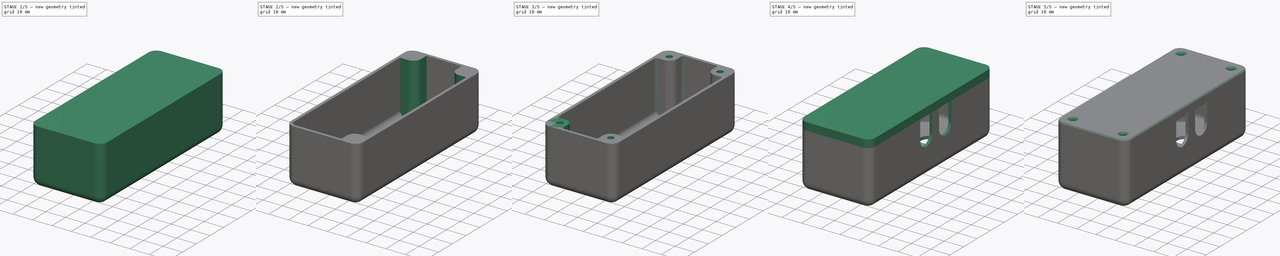
[diagram: build sequence overview — one tinted view per stage of 5, left to right]
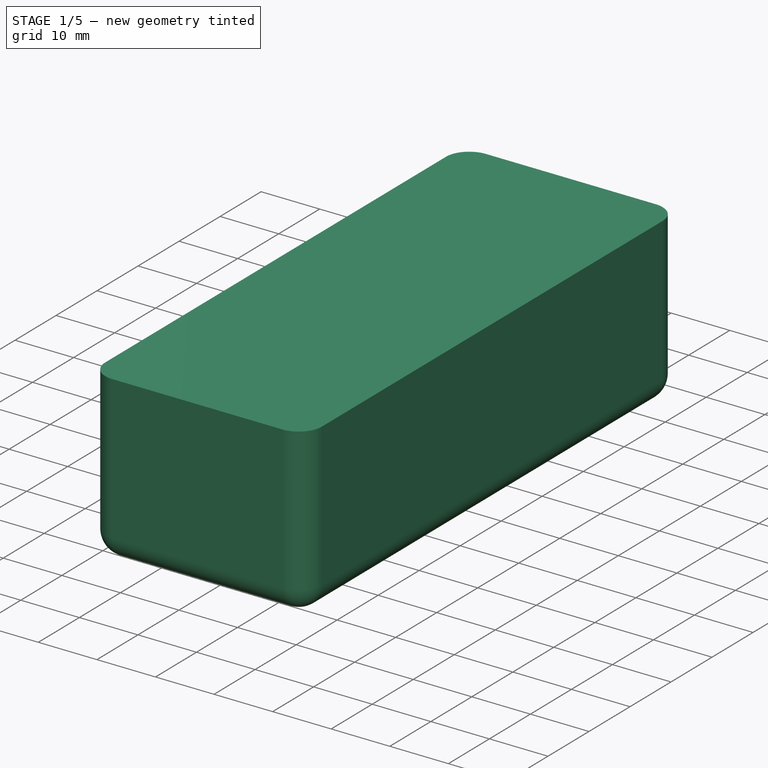
[diagram: stage 1 of 5 — iso view after this stage's code; geometry added in this stage tinted green]
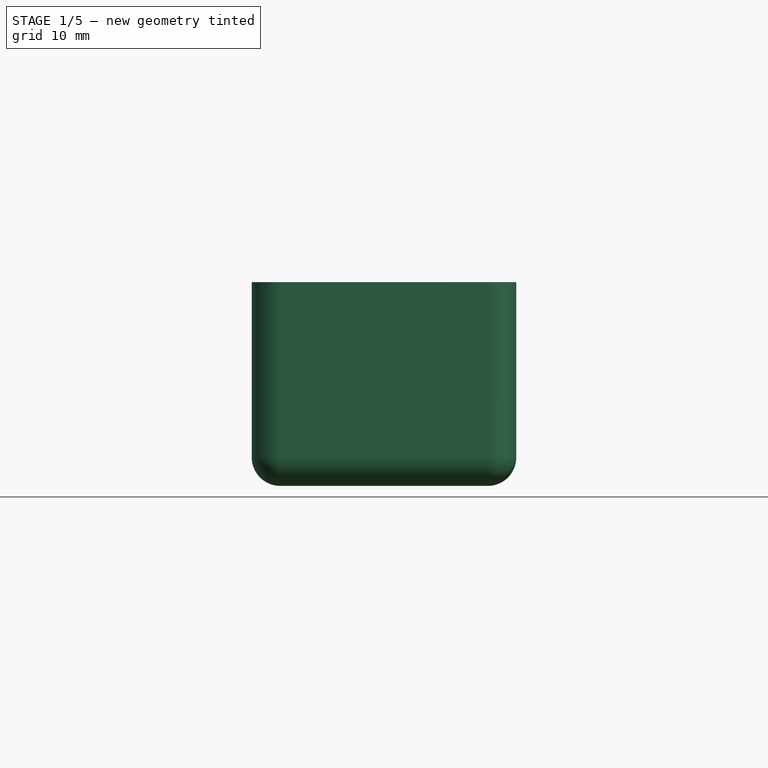
[diagram: stage 1 of 5 — front view after this stage's code; geometry added in this stage tinted green]
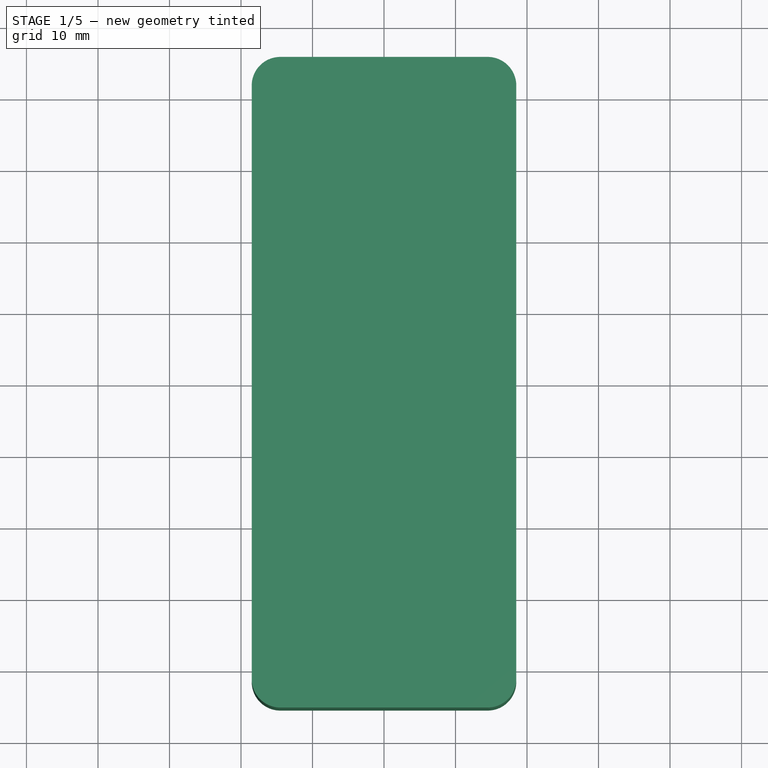
[diagram: stage 1 of 5 — top view after this stage's code; geometry added in this stage tinted green]
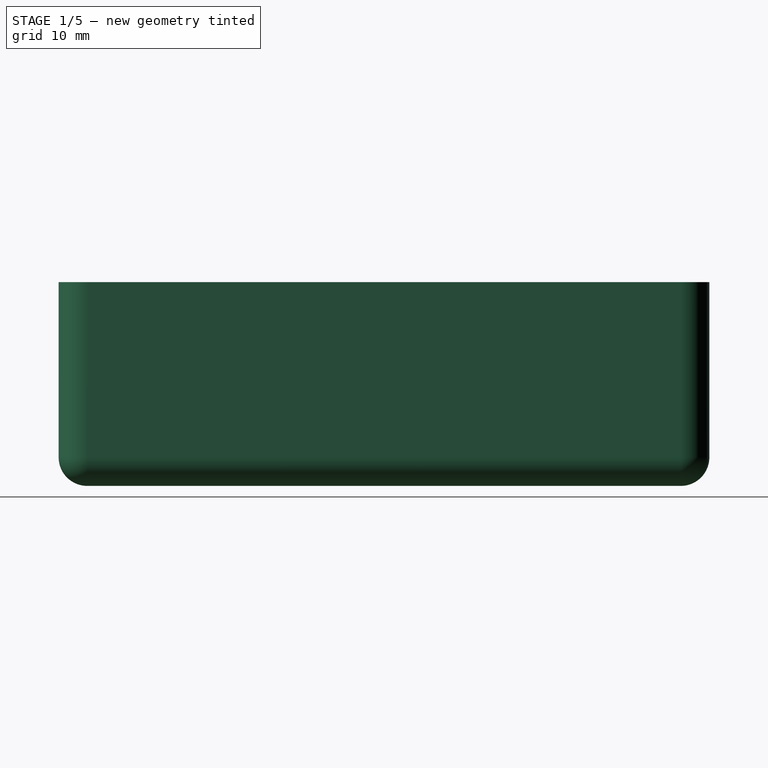
[diagram: stage 1 of 5 — right view after this stage's code; geometry added in this stage tinted green]
FCSTD DOCUMENT  (FreeCAD 1.0R39109 (Git))
Label: generic_parametric_printable_box_LT
License: All rights reserved
LicenseURL: https://en.wikipedia.org/wiki/All_rights_reserved
objects: PartDesign::Body×12, Sketcher::SketchObject×11, PartDesign::FeatureBase×9, PartDesign::Pocket×7, PartDesign::Boolean×5, PartDesign::Pad×4, PartDesign::Fillet×4, PartDesign::Mirrored×4, PartDesign::Plane×3, PartDesign::MultiTransform×2, PartDesign::Chamfer×2, Spreadsheet::Sheet×1, PartDesign::Thickness×1, PartDesign::LinearPattern×1
note: 133 computed .brp shape members not serialized (recipe doc carries the construction recipe); baked Part::Feature solids carry a one-line shape summary decoded from their .brp

FEATURE [Spreadsheet::Sheet] Spreadsheet  label="Parameters"
  cells = A1='inside_length; B1(inside_length)=88; C1='mm; D1='min = 20 mm; A2='inside_width; B2(inside_width)=34; C2='mm; D2='min = 20 mm; A3='box_inside_height; B3(box_inside_height)=27; C3='mm; D3='min = 4 mm; A4='box_thickness; B4(box_thickness)=1.5; C4='mm
FEATURE [Sketcher::SketchObject] Sketch
  ArcFitTolerance = 1e-06
  AttachmentSupport = -> [XY_Plane]
  FullyConstrained = true
  MakeInternals = false
  MapMode = 5
  expr: Constraints[10] = Spreadsheet.inside_width
  expr: Constraints[11] = Spreadsheet.inside_length
  sketch-geometry (5):
    g0: LineSegment StartX=-17 StartY=44 StartZ=0 EndX=-17 EndY=-44 EndZ=0
    g1: LineSegment StartX=-17 StartY=-44 StartZ=0 EndX=17 EndY=-44 EndZ=0
    g2: LineSegment StartX=17 StartY=-44 StartZ=0 EndX=17 EndY=44 EndZ=0
    g3: LineSegment StartX=17 StartY=44 StartZ=0 EndX=-17 EndY=44 EndZ=0
    g4: GeomPoint [constr] X=0 Y=0 Z=0
  constraints (12):
    c: Coincident(g0,g1)
    c: Coincident(g1,g2)
    c: Coincident(g2,g3)
    c: Coincident(g3,g0)
    c: Vertical(g0)
    c: Vertical(g2)
    c: Horizontal(g1)
    c: Horizontal(g3)
    c: Symmetric(g2,g0,g4)
    c: Coincident(g4,g-1)
    c: DistanceX(g3,g3) = 34
    c: DistanceY(g2,g2) = 88
FEATURE [PartDesign::Pad] Pad
  Direction = (0,0,1)
  Length = 27
  Length2 = 10
  Profile = -> Sketch
  ReferenceAxis = -> Sketch [N_Axis]
  Refine = true
  Suppressed = false
  Type = 0
  expr: Length = Spreadsheet.box_inside_height
FEATURE [PartDesign::Fillet] Fillet
  Base = -> Pad [Edge2,Edge5,Edge6,Edge9,Edge8,Edge3,Edge1,Edge11]
  BaseFeature = -> Pad
  Radius = 2.5
  Refine = true
  SupportTransform = false
  Suppressed = false
  UseAllEdges = false
  expr: Radius = Spreadsheet.box_thickness + 1
FEATURE [PartDesign::Body] Body
  AllowCompound = false
  Group = -> [Sketch,Pad,Fillet]
  Origin = -> Origin
  Tip = -> Fillet
FEATURE [Sketcher::SketchObject] Sketch001
  ArcFitTolerance = 1e-06
  AttachmentSupport = -> [XY_Plane001]
  FullyConstrained = true
  MakeInternals = false
  MapMode = 5
  expr: Constraints[10] = Spreadsheet.box_thickness + 6
  expr: Constraints[11] = Spreadsheet.box_thickness + 6
  expr: Constraints[9] = 4
  sketch-geometry (5):
    g0: LineSegment StartX=-4 StartY=-7.5 StartZ=0 EndX=-4 EndY=9e-16 EndZ=0
    g1: ArcOfCircle CenterX=0 CenterY=0 CenterZ=0 NormalX=0 NormalY=0 NormalZ=1 AngleXU=0 Radius=4 StartAngle=1.5708 EndAngle=3.14159
    g2: LineSegment StartX=-6e-16 StartY=4 StartZ=0 EndX=7.5 EndY=4 EndZ=0
    g3: LineSegment StartX=7.5 StartY=4 StartZ=0 EndX=7.5 EndY=-7.5 EndZ=0
    g4: LineSegment StartX=7.5 StartY=-7.5 StartZ=0 EndX=-4 EndY=-7.5 EndZ=0
  constraints (13):
    c: Vertical(g0)
    c: Tangent(g0,g1) = 1.5708
    c: Horizontal(g2)
    c: Coincident(g2,g3)
    c: Vertical(g3)
    c: Coincident(g3,g4)
    c: Coincident(g4,g0)
    c: Horizontal(g4)
    c: Tangent(g1,g2) = 1.5708
    c: DistanceY(g1,g1) = 4
    c: DistanceX(g-1,g2) = 7.5
    c: DistanceY(g0,g-1) = 7.5
    c: Coincident(g1,g-1)
FEATURE [PartDesign::Pad] Pad001
  Direction = (0,0,1)
  Length = 27
  Length2 = 10
  Profile = -> Sketch001
  ReferenceAxis = -> Sketch001 [N_Axis]
  Refine = true
  Suppressed = false
  Type = 0
  expr: Length = Spreadsheet.box_inside_height
FEATURE [PartDesign::FeatureBase] Clone004
  BaseFeature = -> Body
  Suppressed = false
FEATURE [PartDesign::Body] Body008
  AllowCompound = false
  Group = -> [Clone006]
  Origin = -> Origin008
  Placement = pos=(13,40,0) rot=(0,0,1;1.5708rad)
  Tip = -> Clone006
  expr: .Placement.Base.x = Spreadsheet.inside_width * 0.5 - 4
  expr: .Placement.Base.y = Spreadsheet.inside_length * 0.5 - 4
FEATURE [PartDesign::FeatureBase] Clone007
  BaseFeature = -> Body001
  Suppressed = false
FEATURE [PartDesign::Body] Body006
  AllowCompound = false
  Group = -> [Clone004,Boolean003]
  Origin = -> Origin006
  Tip = -> Boolean003
FEATURE [PartDesign::FeatureBase] Clone008
  BaseFeature = -> Body
  Suppressed = false
FEATURE [PartDesign::Thickness] Thickness
  Base = -> Clone008 [Face2]
  BaseFeature = -> Clone008
  Intersection = false
  Join = 0
  Mode = 0
  Refine = true
  SupportTransform = false
  Suppressed = false
  Value = 1.5
  expr: Value = Spreadsheet.box_thickness
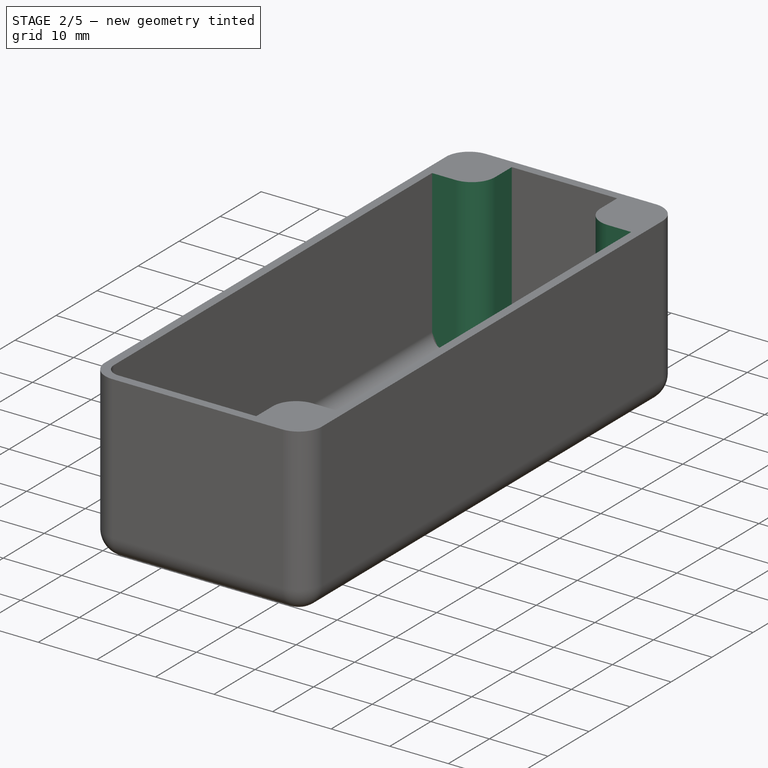
[diagram: stage 2 of 5 — iso view after this stage's code; geometry added in this stage tinted green]
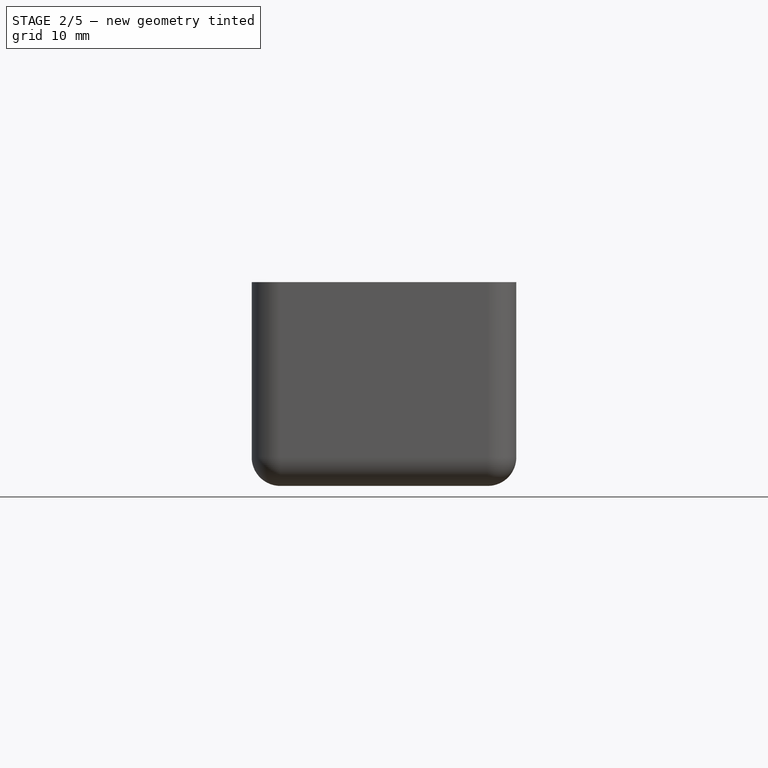
[diagram: stage 2 of 5 — front view after this stage's code; geometry added in this stage tinted green]
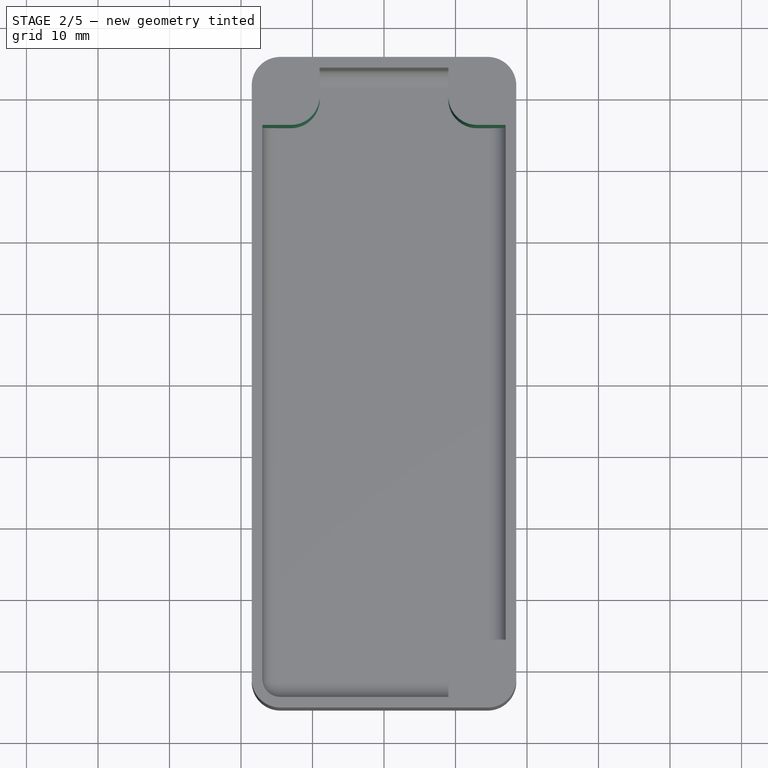
[diagram: stage 2 of 5 — top view after this stage's code; geometry added in this stage tinted green]
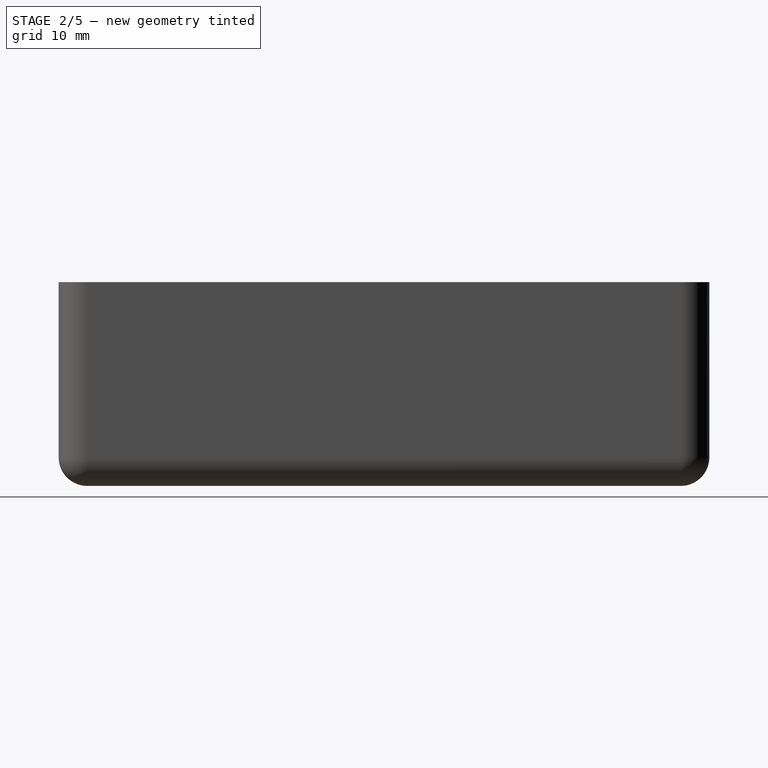
[diagram: stage 2 of 5 — right view after this stage's code; geometry added in this stage tinted green]
FEATURE [PartDesign::Body] Body002
  AllowCompound = false
  Group = -> [Clone,Boolean]
  Origin = -> Origin002
  Tip = -> Boolean
FEATURE [PartDesign::FeatureBase] Clone002
  BaseFeature = -> Body
  Suppressed = false
FEATURE [PartDesign::FeatureBase] Clone003
  BaseFeature = -> Body
  Suppressed = false
FEATURE [PartDesign::FeatureBase] Clone005
  BaseFeature = -> Body001
  Suppressed = false
FEATURE [PartDesign::Body] Body007
  AllowCompound = false
  Group = -> [Clone005]
  Origin = -> Origin007
  Placement = pos=(-13,40,0) rot=(0,0,1;3.14159rad)
  Tip = -> Clone005
  expr: .Placement.Base.x = -(Spreadsheet.inside_width * 0.5 - 4)
  expr: .Placement.Base.y = Spreadsheet.inside_length * 0.5 - 4
FEATURE [PartDesign::FeatureBase] Clone006
  BaseFeature = -> Body001
  Suppressed = false
FEATURE [PartDesign::Body] Body009
  AllowCompound = false
  Group = -> [Clone007]
  Origin = -> Origin009
  Placement = pos=(13,-40,0) rot=(0,0,1;0rad)
  Tip = -> Clone007
  expr: .Placement.Base.x = Spreadsheet.inside_width * 0.5 - 4
  expr: .Placement.Base.y = -(Spreadsheet.inside_length * 0.5 - 4)
FEATURE [PartDesign::Boolean] Boolean001
  BaseFeature = -> Clone002
  Group = -> [Body007]
  Refine = true
  Suppressed = false
  Type = 2
  UsePlacement = true
FEATURE [PartDesign::Body] Body004
  AllowCompound = false
  Group = -> [Clone002,Boolean001]
  Origin = -> Origin004
  Tip = -> Boolean001
FEATURE [PartDesign::Boolean] Boolean002
  BaseFeature = -> Clone003
  Group = -> [Body008]
  Refine = true
  Suppressed = false
  Type = 2
  UsePlacement = true
FEATURE [PartDesign::Body] Body005
  AllowCompound = false
  Group = -> [Clone003,Boolean002]
  Origin = -> Origin005
  Tip = -> Boolean002
FEATURE [PartDesign::Boolean] Boolean003
  BaseFeature = -> Clone004
  Group = -> [Body009]
  Refine = true
  Suppressed = false
  Type = 2
  UsePlacement = true
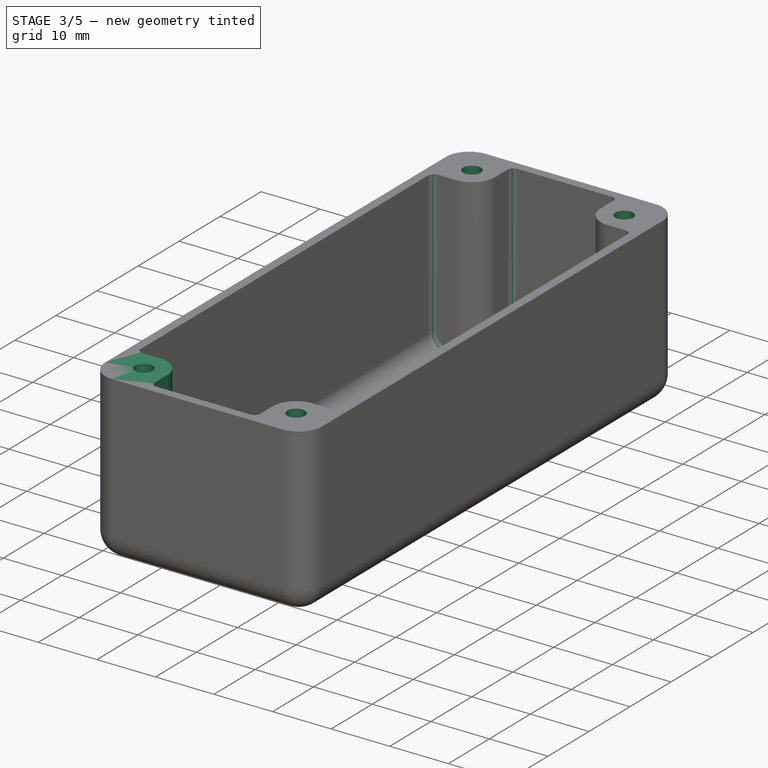
[diagram: stage 3 of 5 — iso view after this stage's code; geometry added in this stage tinted green]
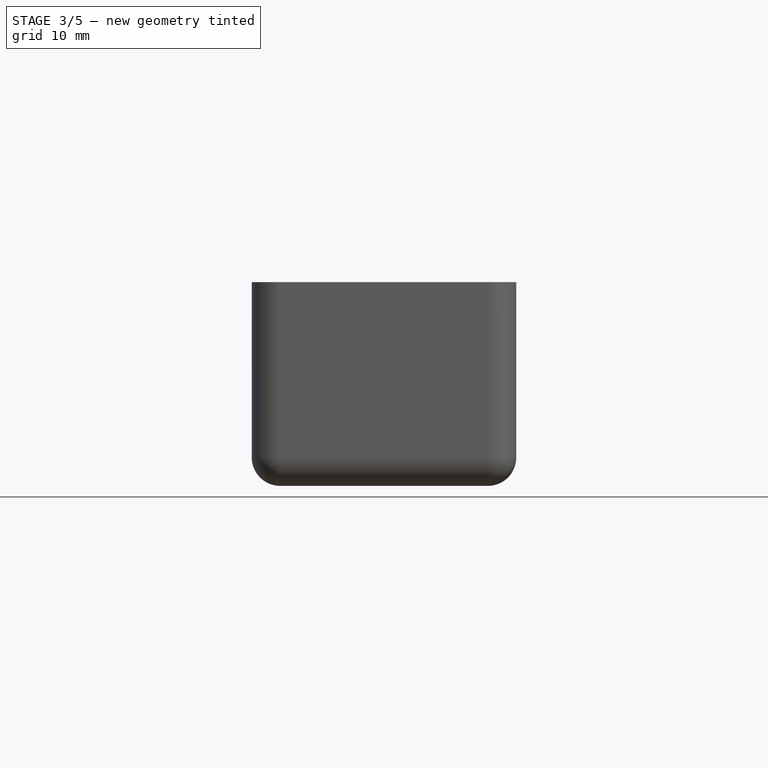
[diagram: stage 3 of 5 — front view after this stage's code; geometry added in this stage tinted green]
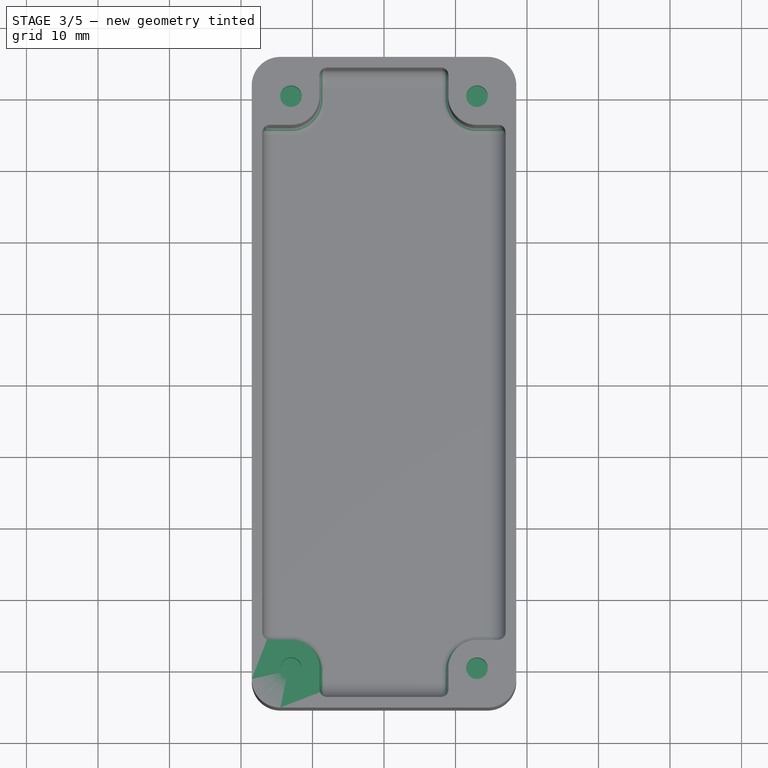
[diagram: stage 3 of 5 — top view after this stage's code; geometry added in this stage tinted green]
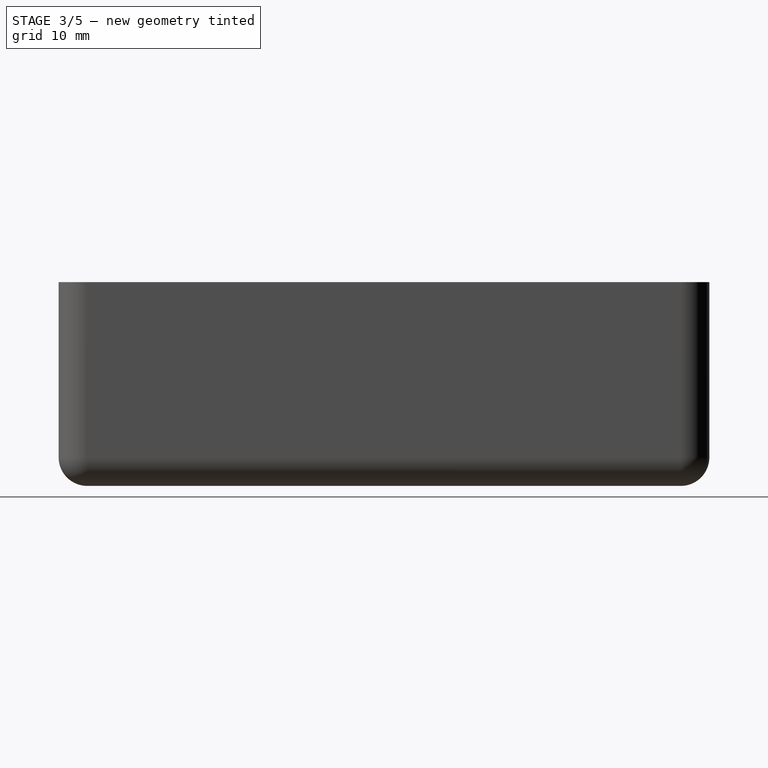
[diagram: stage 3 of 5 — right view after this stage's code; geometry added in this stage tinted green]
FEATURE [PartDesign::Body] Body001
  AllowCompound = false
  Group = -> [Sketch001,Pad001]
  Origin = -> Origin001
  Tip = -> Pad001
FEATURE [PartDesign::FeatureBase] Clone
  BaseFeature = -> Body
  Suppressed = false
FEATURE [PartDesign::FeatureBase] Clone001
  BaseFeature = -> Body001
  Suppressed = false
FEATURE [PartDesign::Body] Body003
  AllowCompound = false
  Group = -> [Clone001]
  Origin = -> Origin003
  Placement = pos=(-13,-40,0) rot=(0,0,1;4.71239rad)
  Tip = -> Clone001
  expr: .Placement.Base.x = -(Spreadsheet.inside_width * 0.5 - 4)
  expr: .Placement.Base.y = -(Spreadsheet.inside_length * 0.5 - 4)
FEATURE [PartDesign::Boolean] Boolean
  BaseFeature = -> Clone
  Group = -> [Body003]
  Refine = true
  Suppressed = false
  Type = 2
  UsePlacement = true
FEATURE [PartDesign::Boolean] Boolean004
  BaseFeature = -> Thickness
  Group = -> [Body006,Body005,Body004,Body002]
  Refine = true
  Suppressed = false
  Type = 0
  UsePlacement = true
FEATURE [PartDesign::Plane] DatumPlane
  AttachmentOffset = pos=(0,0,27) rot=(0,0,1;0rad)
  AttachmentSupport = -> [XY_Plane010]
  Length = 60
  MapMode = 5
  Placement = pos=(0,0,27) rot=(0,0,1;0rad)
  ResizeMode = 0
  Width = 60
  expr: .AttachmentOffset.Base.z = Spreadsheet.box_inside_height
FEATURE [Sketcher::SketchObject] Sketch002
  ArcFitTolerance = 1e-06
  AttachmentSupport = -> [DatumPlane]
  FullyConstrained = true
  MakeInternals = false
  MapMode = 5
  Placement = pos=(0,0,27) rot=(0,0,1;0rad)
  expr: Constraints[1] = Spreadsheet.inside_width * 0.5 - 4
  expr: Constraints[2] = Spreadsheet.inside_length * 0.5 - 4
  sketch-geometry (1):
    g0: Circle CenterX=-13 CenterY=-40 CenterZ=0 NormalX=0 NormalY=0 NormalZ=1 AngleXU=0 Radius=1.5
  constraints (3):
    c: Diameter(g0) = 3
    c: DistanceX(g0,g-1) = 13
    c: DistanceY(g0,g-1) = 40
FEATURE [PartDesign::Pocket] Pocket
  BaseFeature = -> Boolean004
  Direction = (0,0,-1)
  Length = 5
  Length2 = 5
  Profile = -> Sketch002
  ReferenceAxis = -> Sketch002 [N_Axis]
  Refine = true
  Suppressed = false
  Type = 0
FEATURE [PartDesign::Mirrored] Mirrored
  MirrorPlane = -> Sketch002 [V_Axis]
  Refine = true
  Suppressed = false
  TransformMode = 0
FEATURE [PartDesign::Mirrored] Mirrored001
  MirrorPlane = -> Sketch002 [H_Axis]
  Refine = true
  Suppressed = false
  TransformMode = 0
FEATURE [PartDesign::MultiTransform] MultiTransform
  BaseFeature = -> Pocket
  Originals = -> [Pocket]
  Refine = true
  Suppressed = false
  TransformMode = 0
  Transformations = -> [Mirrored,Mirrored001]
FEATURE [PartDesign::Fillet] Fillet001
  Base = -> MultiTransform [Edge60,Edge66,Edge64,Edge70,Edge74,Edge75,Edge76,Edge80,Edge90,Edge84,Edge86,Edge94,Edge95,Edge96,Edge72,Edge73,Edge71,Edge68,Edge61,Edge62,Edge58,Edge77,Edge82,Edge81,Edge88,Edge91,Edge93,Edge92]
  BaseFeature = -> MultiTransform
  Radius = 1
  Refine = true
  SupportTransform = false
  Suppressed = false
  UseAllEdges = false
  expr: Radius = 1
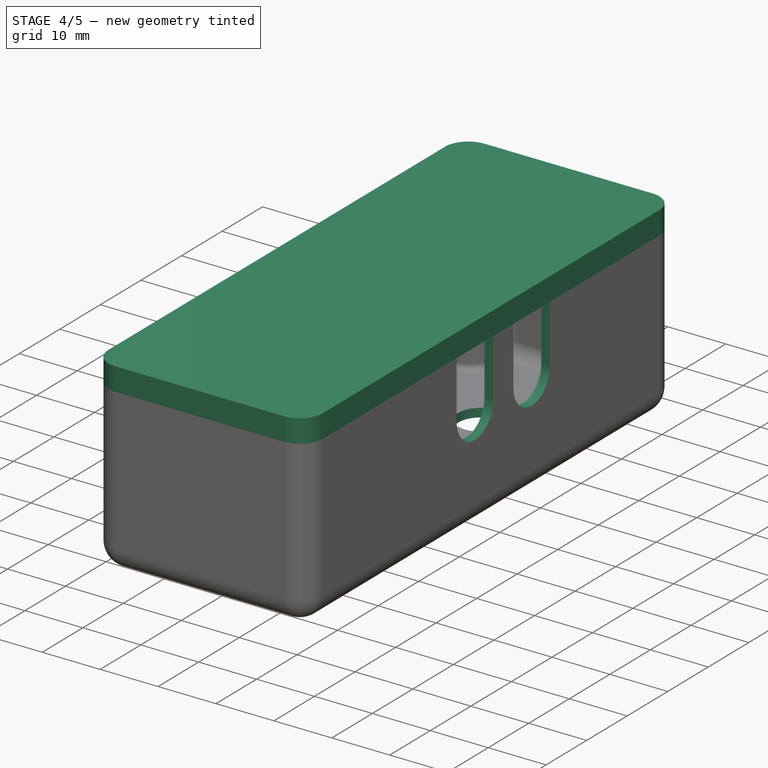
[diagram: stage 4 of 5 — iso view after this stage's code; geometry added in this stage tinted green]
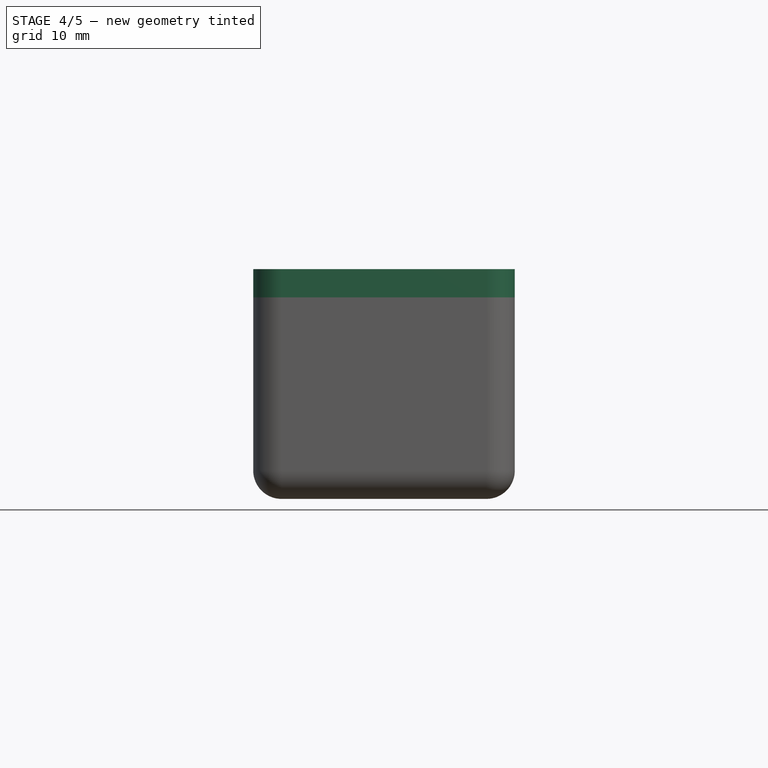
[diagram: stage 4 of 5 — front view after this stage's code; geometry added in this stage tinted green]
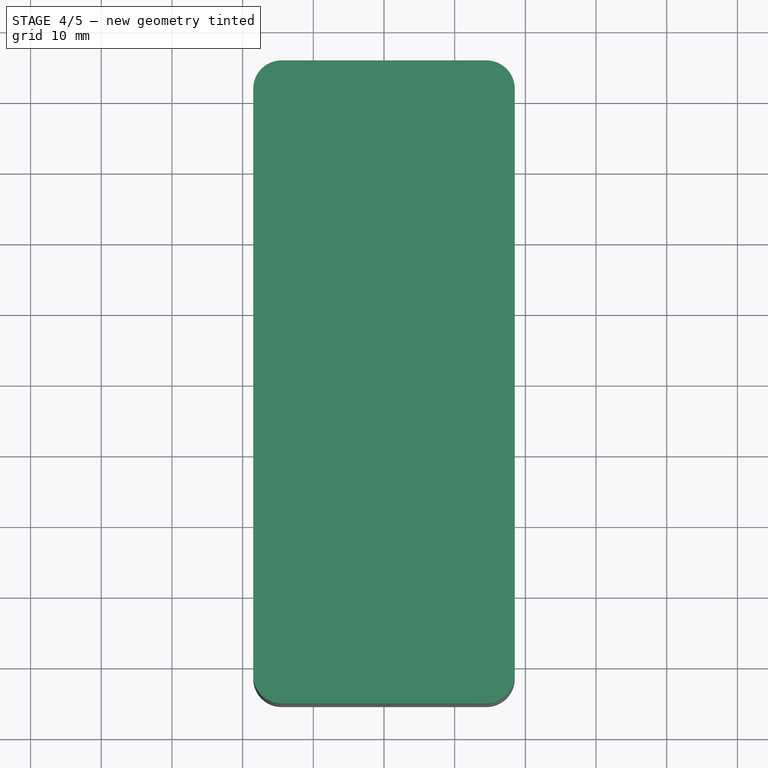
[diagram: stage 4 of 5 — top view after this stage's code; geometry added in this stage tinted green]
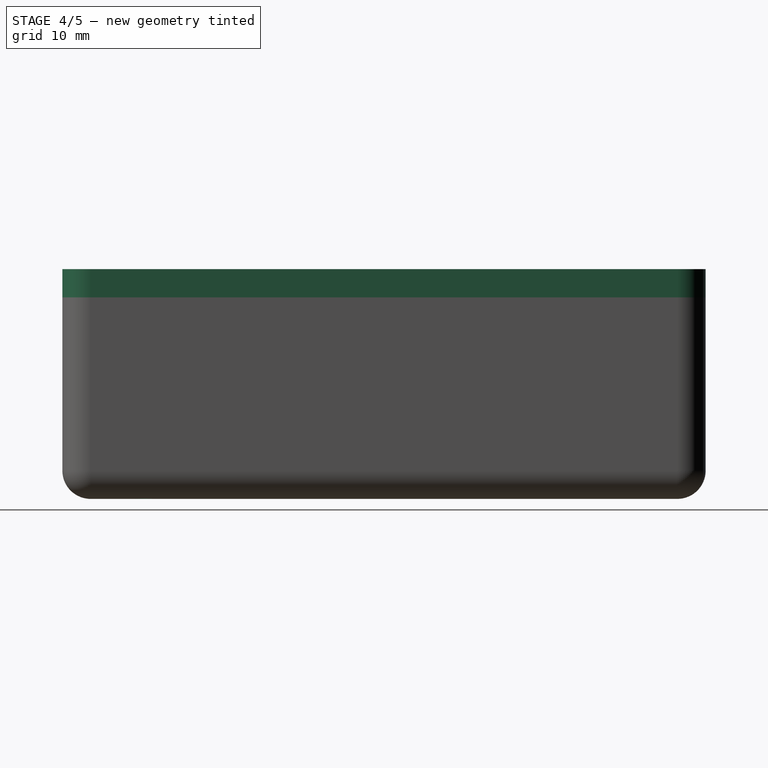
[diagram: stage 4 of 5 — right view after this stage's code; geometry added in this stage tinted green]
FEATURE [PartDesign::Chamfer] Chamfer
  Angle = 45
  Base = -> Fillet001 [Edge33,Edge34,Edge36,Edge35]
  BaseFeature = -> Fillet001
  ChamferType = 0
  FlipDirection = false
  Refine = true
  Size = 0.5
  Size2 = 1
  SupportTransform = false
  Suppressed = false
  UseAllEdges = false
FEATURE [PartDesign::Plane] DatumPlane001
  AttachmentOffset = pos=(0,0,27) rot=(0,0,1;0rad)
  AttachmentSupport = -> [XY_Plane011]
  Length = 63.4907
  MapMode = 5
  Placement = pos=(0,0,27) rot=(0,0,1;0rad)
  ResizeMode = 0
  Width = 104.491
  expr: .AttachmentOffset.Base.z = Spreadsheet.box_inside_height
FEATURE [Sketcher::SketchObject] Sketch003
  ArcFitTolerance = 1e-06
  AttachmentSupport = -> [DatumPlane001]
  FullyConstrained = true
  MakeInternals = false
  MapMode = 5
  Placement = pos=(0,0,27) rot=(0,0,1;0rad)
  expr: Constraints[27] = 4
  expr: Constraints[6] = Spreadsheet.inside_width + Spreadsheet.box_thickness * 2
  expr: Constraints[7] = Spreadsheet.inside_length + Spreadsheet.box_thickness * 2
  sketch-geometry (13):
    g0: LineSegment StartX=-18.5 StartY=41.5 StartZ=0 EndX=-18.5 EndY=-41.5 EndZ=0
    g1: LineSegment StartX=-14.5 StartY=-45.5 StartZ=0 EndX=14.5 EndY=-45.5 EndZ=0
    g2: LineSegment StartX=18.5 StartY=-41.5 StartZ=0 EndX=18.5 EndY=41.5 EndZ=0
    g3: LineSegment StartX=14.5 StartY=45.5 StartZ=0 EndX=-14.5 EndY=45.5 EndZ=0
    g4: GeomPoint [constr] X=0 Y=0 Z=0
    g5: ArcOfCircle CenterX=-14.5 CenterY=41.5 CenterZ=0 NormalX=0 NormalY=0 NormalZ=1 AngleXU=0 Radius=4 StartAngle=1.5708 EndAngle=3.14159
    g6: GeomPoint [constr] X=-18.5 Y=45.5 Z=0
    g7: ArcOfCircle CenterX=14.5 CenterY=41.5 CenterZ=0 NormalX=0 NormalY=0 NormalZ=1 AngleXU=0 Radius=4 StartAngle=0 EndAngle=1.5708
    g8: GeomPoint [constr] X=18.5 Y=45.5 Z=0
    g9: ArcOfCircle CenterX=14.5 CenterY=-41.5 CenterZ=0 NormalX=0 NormalY=0 NormalZ=1 AngleXU=0 Radius=4 StartAngle=4.71239 EndAngle=6.28319
    g10: GeomPoint [constr] X=18.5 Y=-45.5 Z=0
    g11: ArcOfCircle CenterX=-14.5 CenterY=-41.5 CenterZ=0 NormalX=0 NormalY=0 NormalZ=1 AngleXU=0 Radius=4 StartAngle=3.14159 EndAngle=4.71239
    g12: GeomPoint [constr] X=-18.5 Y=-45.5 Z=0
  constraints (28):
    c: Vertical(g0)
    c: Vertical(g2)
    c: Horizontal(g1)
    c: Horizontal(g3)
    c: Symmetric(g10,g6,g4)
    c: Coincident(g4,g-1)
    c: DistanceX(g6,g8) = 37
    c: DistanceY(g10,g8) = 91
    c: PointOnObject(g6,g0)
    c: PointOnObject(g6,g3)
    c: Tangent(g0,g5) = -1.5708
    c: Tangent(g3,g5) = -1.5708
    c: PointOnObject(g8,g3)
    c: PointOnObject(g8,g2)
    c: Tangent(g3,g7) = -1.5708
    c: Tangent(g2,g7) = -1.5708
    c: PointOnObject(g10,g2)
    c: PointOnObject(g10,g1)
    c: Tangent(g2,g9) = -1.5708
    c: Tangent(g1,g9) = -1.5708
    c: PointOnObject(g12,g1)
    c: PointOnObject(g12,g0)
    c: Tangent(g1,g11) = -1.5708
    c: Tangent(g0,g11) = -1.5708
    c: Equal(g5,g7)
    c: Equal(g7,g9)
    c: Equal(g9,g11)
    c: Radius(g11) = 4
FEATURE [PartDesign::Pad] Pad002
  Direction = (0,0,1)
  Length = 4
  Length2 = 10
  Placement = pos=(0,0,27) rot=(0,0,1;0rad)
  Profile = -> Sketch003
  ReferenceAxis = -> Sketch003 [N_Axis]
  Refine = true
  Suppressed = false
  Type = 0
FEATURE [PartDesign::Body] Body011
  AllowCompound = false
  Group = -> [DatumPlane001,Sketch003,Pad002,Sketch004,Pad003,Sketch005,DatumPlane002,Pocket001,Sketch006,Pocket002,MultiTransform001,Mirrored002,Mirrored003,Chamfer001,Fillet002,Fillet003]
  Origin = -> Origin011
  Tip = -> Fillet003
FEATURE [Sketcher::SketchObject] Sketch007
  ArcFitTolerance = 1e-06
  AttachmentSupport = -> [YZ_Plane010]
  FullyConstrained = true
  MakeInternals = false
  MapMode = 5
  Placement = pos=(0,0,0) rot=(0.57735,0.57735,0.57735;2.0944rad)
  sketch-geometry (4):
    g0: LineSegment StartX=-8.5 StartY=27 StartZ=0 EndX=0.5 EndY=27 EndZ=0
    g1: LineSegment StartX=0.5 StartY=27 StartZ=0 EndX=0.5 EndY=17 EndZ=0
    g2: ArcOfCircle CenterX=-4 CenterY=17 CenterZ=0 NormalX=0 NormalY=0 NormalZ=1 AngleXU=0 Radius=4.5 StartAngle=3.14159 EndAngle=6.28319
    g3: LineSegment StartX=-8.5 StartY=17 StartZ=0 EndX=-8.5 EndY=27 EndZ=0
  constraints (11):
    c: Horizontal(g0)
    c: Coincident(g0,g1)
    c: Vertical(g1)
    c: Tangent(g1,g2) = 1.5708
    c: Coincident(g3,g0)
    c: Vertical(g3)
    c: Tangent(g2,g3) = 1.5708
    c: Distance(g0,g-2) = 8.5
    c: DistanceX(g-1,g0) = 0.5
    c: Distance(g0,g-1) = 27
    c: DistanceY(g3,g3) = 10
FEATURE [PartDesign::Pocket] Pocket003
  BaseFeature = -> Chamfer
  Direction = (-1,0,0)
  Length = 5
  Length2 = 5
  Profile = -> Sketch007
  ReferenceAxis = -> Sketch007 [N_Axis]
  Refine = true
  Reversed = true
  Suppressed = false
  Type = 1
FEATURE [PartDesign::LinearPattern] LinearPattern
  BaseFeature = -> Pocket003
  Direction = -> Sketch007 [H_Axis]
  Length = 14
  Mode = 0
  Occurrences = 2
  Offset = 14
  Originals = -> [Pocket003]
  Refine = true
  Suppressed = false
  TransformMode = 0
FEATURE [Sketcher::SketchObject] Sketch008
  ArcFitTolerance = 1e-06
  AttachmentSupport = -> [XZ_Plane010]
  FullyConstrained = true
  MakeInternals = false
  MapMode = 5
  Placement = pos=(0,0,0) rot=(1,0,0;1.5708rad)
  sketch-geometry (4):
    g0: LineSegment StartX=-4.75 StartY=27 StartZ=0 EndX=-4.75 EndY=13 EndZ=0
    g1: LineSegment StartX=-4.75 StartY=13 StartZ=0 EndX=4.75 EndY=13 EndZ=0
    g2: LineSegment StartX=4.75 StartY=13 StartZ=0 EndX=4.75 EndY=27 EndZ=0
    g3: LineSegment StartX=4.75 StartY=27 StartZ=0 EndX=-4.75 EndY=27 EndZ=0
  constraints (11):
    c: Coincident(g0,g1)
    c: Coincident(g1,g2)
    c: Coincident(g2,g3)
    c: Coincident(g3,g0)
    c: Vertical(g0)
    c: Vertical(g2)
    c: Horizontal(g3)
    c: DistanceX(g3,g3) = 9.5
    c: DistanceY(g2,g2) = 14
    c: DistanceY(g-1,g2) = 27
    c: Symmetric(g0,g1,g-2)
FEATURE [PartDesign::Pocket] Pocket004
  BaseFeature = -> LinearPattern
  Direction = (0,1,-2e-16)
  Length = 5
  Length2 = 5
  Profile = -> Sketch008
  ReferenceAxis = -> Sketch008 [N_Axis]
  Refine = true
  Suppressed = false
  Type = 1
FEATURE [Sketcher::SketchObject] Sketch009
  ArcFitTolerance = 1e-06
  AttachmentSupport = -> [YZ_Plane010]
  FullyConstrained = true
  MakeInternals = false
  MapMode = 5
  Placement = pos=(0,0,0) rot=(0.57735,0.57735,0.57735;2.0944rad)
  sketch-geometry (4):
    g0: LineSegment StartX=-22.5 StartY=27 StartZ=0 EndX=-13.5 EndY=27 EndZ=0
    g1: LineSegment StartX=-13.5 StartY=27 StartZ=0 EndX=-13.5 EndY=17 EndZ=0
    g2: ArcOfCircle CenterX=-18 CenterY=17 CenterZ=0 NormalX=0 NormalY=0 NormalZ=1 AngleXU=0 Radius=4.5 StartAngle=3.14159 EndAngle=6.28319
    g3: LineSegment StartX=-22.5 StartY=17 StartZ=0 EndX=-22.5 EndY=27 EndZ=0
  constraints (11):
    c: Horizontal(g0)
    c: Coincident(g0,g1)
    c: Vertical(g1)
    c: Tangent(g1,g2) = 1.5708
    c: Coincident(g3,g0)
    c: Tangent(g2,g3) = 1.5708
    c: Vertical(g3)
    c: DistanceX(g0,g0) = 9
    c: DistanceY(g1,g1) = 10
    c: DistanceY(g-1,g0) = 27
    c: DistanceX(g0,g-1) = 22.5
FEATURE [PartDesign::Pocket] Pocket005
  BaseFeature = -> Pocket004
  Direction = (-1,0,0)
  Length = 5
  Length2 = 5
  Profile = -> Sketch009
  ReferenceAxis = -> Sketch009 [N_Axis]
  Refine = true
  Suppressed = false
  Type = 1
FEATURE [Sketcher::SketchObject] Sketch010
  ArcFitTolerance = 1e-06
  AttachmentSupport = -> [XY_Plane010]
  FullyConstrained = true
  MakeInternals = false
  MapMode = 5
  sketch-geometry (3):
    g0: Circle CenterX=0 CenterY=24 CenterZ=0 NormalX=0 NormalY=0 NormalZ=1 AngleXU=0 Radius=4
    g1: Circle CenterX=0 CenterY=-34 CenterZ=0 NormalX=0 NormalY=0 NormalZ=1 AngleXU=0 Radius=6.5
    g2: Circle CenterX=12 CenterY=-34 CenterZ=0 NormalX=0 NormalY=0 NormalZ=1 AngleXU=0 Radius=3
  constraints (9):
    c: PointOnObject(g0,g-2)
    c: Diameter(g0) = 8
    c: DistanceY(g-1,g0) = 24
    c: PointOnObject(g1,g-2)
    c: Diameter(g1) = 13
    c: DistanceY(g1,g-1) = 34
    c: Diameter(g2) = 6
    c: DistanceY(g2,g-1) = 34
    c: DistanceX(g-1,g2) = 12
FEATURE [PartDesign::Pocket] Pocket006
  BaseFeature = -> Pocket005
  Direction = (0,0,-1)
  Length = 5
  Length2 = 5
  Profile = -> Sketch010
  ReferenceAxis = -> Sketch010 [N_Axis]
  Refine = true
  Suppressed = false
  Type = 1
FEATURE [PartDesign::Body] Body010
  AllowCompound = false
  Group = -> [Clone008,Thickness,Boolean004,DatumPlane,Sketch002,Pocket,MultiTransform,Mirrored,Mirrored001,Fillet001,Chamfer,Sketch007,Pocket003,LinearPattern,Sketch008,Pocket004,Sketch009,Pocket005,Sketch010,Pocket006]
  Origin = -> Origin010
  Tip = -> Pocket006
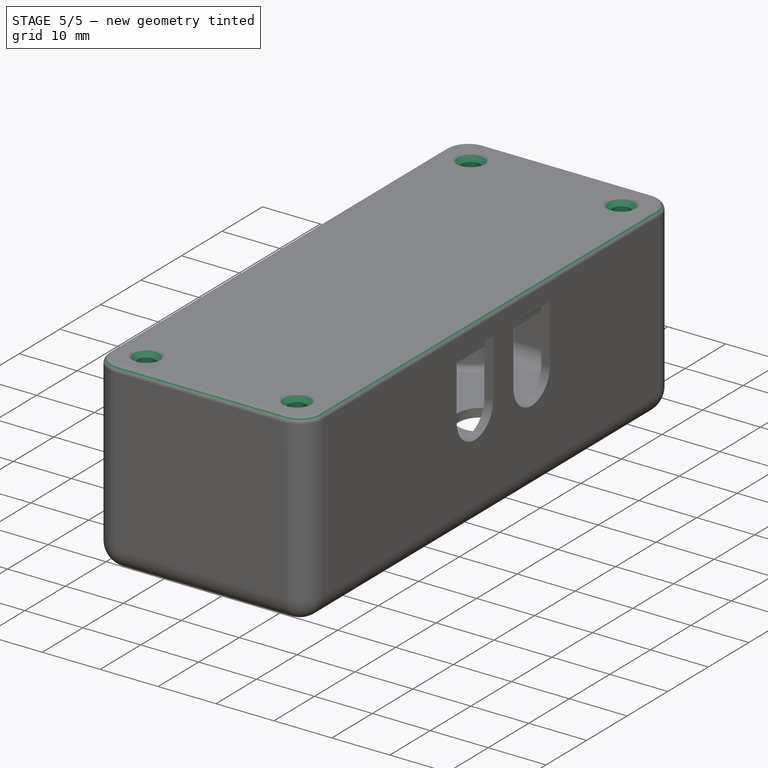
[diagram: stage 5 of 5 — iso view after this stage's code; geometry added in this stage tinted green]
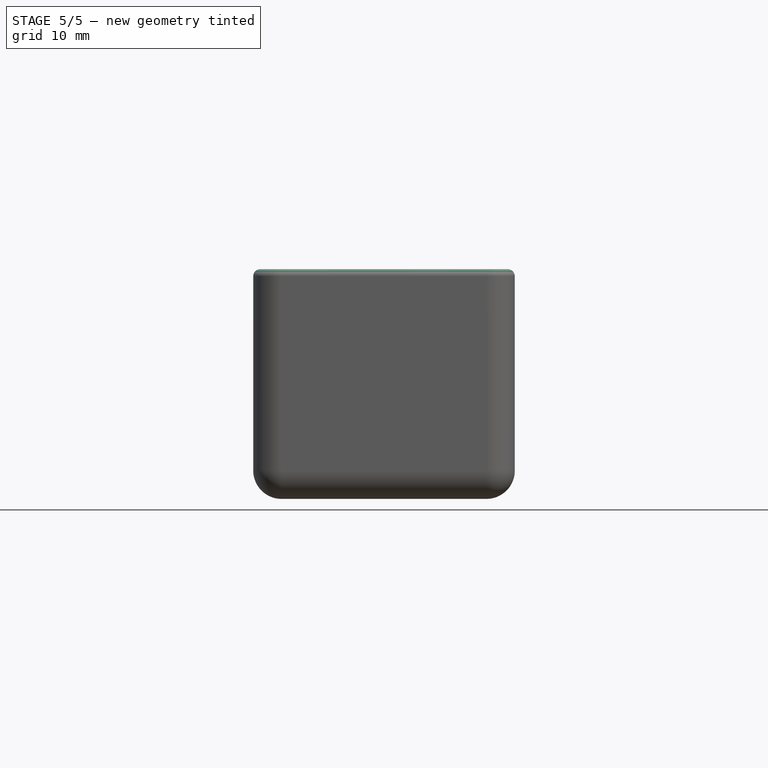
[diagram: stage 5 of 5 — front view after this stage's code; geometry added in this stage tinted green]
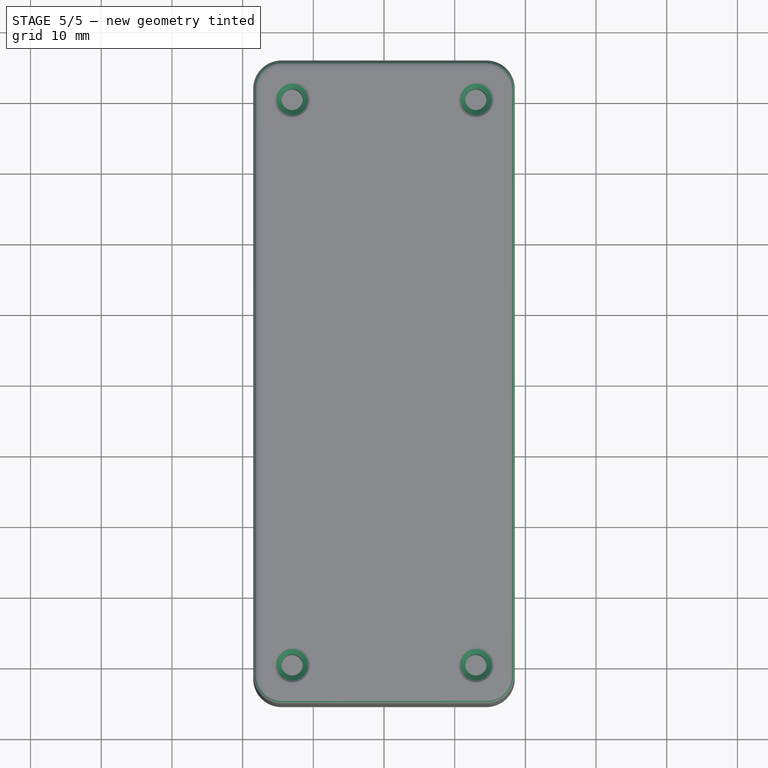
[diagram: stage 5 of 5 — top view after this stage's code; geometry added in this stage tinted green]
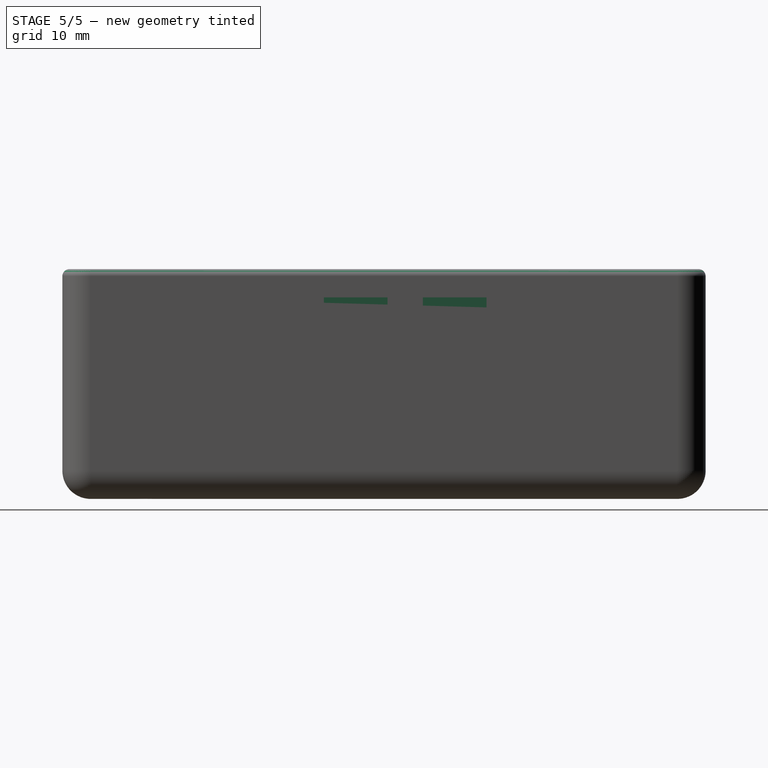
[diagram: stage 5 of 5 — right view after this stage's code; geometry added in this stage tinted green]
FEATURE [Sketcher::SketchObject] Sketch004
  ArcFitTolerance = 1e-06
  AttachmentSupport = -> [DatumPlane001]
  FullyConstrained = true
  MakeInternals = false
  MapMode = 5
  Placement = pos=(0,0,27) rot=(0,0,1;0rad)
  expr: Constraints[14] = Spreadsheet.inside_length
  expr: Constraints[15] = Spreadsheet.inside_width
  sketch-geometry (36):
    g0: LineSegment StartX=9 StartY=43 StartZ=0 EndX=9 EndY=40 EndZ=0
    g1: LineSegment StartX=13 StartY=36 StartZ=0 EndX=16 EndY=36 EndZ=0
    g2: LineSegment StartX=17 StartY=35 StartZ=0 EndX=17 EndY=-35 EndZ=0
    g3: LineSegment StartX=16 StartY=-36 StartZ=0 EndX=13 EndY=-36 EndZ=0
    g4: LineSegment StartX=9 StartY=-40 StartZ=0 EndX=9 EndY=-43 EndZ=0
    g5: LineSegment StartX=8 StartY=-44 StartZ=0 EndX=-8 EndY=-44 EndZ=0
    g6: LineSegment StartX=-9 StartY=-43 StartZ=0 EndX=-9 EndY=-40 EndZ=0
    g7: LineSegment StartX=-13 StartY=-36 StartZ=0 EndX=-16 EndY=-36 EndZ=0
    g8: LineSegment StartX=-17 StartY=-35 StartZ=0 EndX=-17 EndY=35 EndZ=0
    g9: LineSegment StartX=-16 StartY=36 StartZ=0 EndX=-13 EndY=36 EndZ=0
    g10: LineSegment StartX=-9 StartY=40 StartZ=0 EndX=-9 EndY=43 EndZ=0
    g11: LineSegment StartX=-8 StartY=44 StartZ=0 EndX=8 EndY=44 EndZ=0
    g12: ArcOfCircle CenterX=-13 CenterY=40 CenterZ=0 NormalX=0 NormalY=0 NormalZ=1 AngleXU=0 Radius=4 StartAngle=4.71239 EndAngle=6.28319
    g13: GeomPoint [constr] X=-9 Y=36 Z=0
    g14: ArcOfCircle CenterX=13 CenterY=40 CenterZ=0 NormalX=0 NormalY=0 NormalZ=1 AngleXU=0 Radius=4 StartAngle=3.14159 EndAngle=4.71239
    g15: GeomPoint [constr] X=9 Y=36 Z=0
    g16: ArcOfCircle CenterX=-13 CenterY=-40 CenterZ=0 NormalX=0 NormalY=0 NormalZ=1 AngleXU=0 Radius=4 StartAngle=0 EndAngle=1.5708
    g17: GeomPoint [constr] X=-9 Y=-36 Z=0
    g18: ArcOfCircle CenterX=13 CenterY=-40 CenterZ=0 NormalX=0 NormalY=0 NormalZ=1 AngleXU=0 Radius=4 StartAngle=1.5708 EndAngle=3.14159
    g19: GeomPoint [constr] X=9 Y=-36 Z=0
    g20: ArcOfCircle CenterX=-16 CenterY=-35 CenterZ=0 NormalX=0 NormalY=0 NormalZ=1 AngleXU=0 Radius=1 StartAngle=3.14159 EndAngle=4.71239
    g21: GeomPoint [constr] X=-17 Y=-36 Z=0
    g22: ArcOfCircle CenterX=-8 CenterY=-43 CenterZ=0 NormalX=0 NormalY=0 NormalZ=1 AngleXU=0 Radius=1 StartAngle=3.14159 EndAngle=4.71239
    g23: GeomPoint [constr] X=-9 Y=-44 Z=0
    g24: ArcOfCircle CenterX=8 CenterY=-43 CenterZ=0 NormalX=0 NormalY=0 NormalZ=1 AngleXU=0 Radius=1 StartAngle=4.71239 EndAngle=6.28319
    g25: GeomPoint [constr] X=9 Y=-44 Z=0
    g26: ArcOfCircle CenterX=16 CenterY=-35 CenterZ=0 NormalX=0 NormalY=0 NormalZ=1 AngleXU=0 Radius=1 StartAngle=4.71239 EndAngle=6.28319
    g27: GeomPoint [constr] X=17 Y=-36 Z=0
    g28: ArcOfCircle CenterX=16 CenterY=35 CenterZ=0 NormalX=0 NormalY=0 NormalZ=1 AngleXU=0 Radius=1 StartAngle=-3.6e-15 EndAngle=1.5708
    g29: GeomPoint [constr] X=17 Y=36 Z=0
    g30: ArcOfCircle CenterX=8 CenterY=43 CenterZ=0 NormalX=0 NormalY=0 NormalZ=1 AngleXU=0 Radius=1 StartAngle=-9e-16 EndAngle=1.5708
    g31: GeomPoint [constr] X=9 Y=44 Z=0
    g32: ArcOfCircle CenterX=-8 CenterY=43 CenterZ=0 NormalX=0 NormalY=0 NormalZ=1 AngleXU=0 Radius=1 StartAngle=1.5708 EndAngle=3.14159
    g33: GeomPoint [constr] X=-9 Y=44 Z=0
    g34: ArcOfCircle CenterX=-16 CenterY=35 CenterZ=0 NormalX=0 NormalY=0 NormalZ=1 AngleXU=0 Radius=1 StartAngle=1.5708 EndAngle=3.14159
    g35: GeomPoint [constr] X=-17 Y=36 Z=0
  constraints (79):
    c: Vertical(g0)
    c: Horizontal(g1)
    c: Vertical(g2)
    c: Horizontal(g3)
    c: Horizontal(g5)
    c: Vertical(g6)
    c: Horizontal(g7)
    c: Vertical(g8)
    c: Horizontal(g9)
    c: Vertical(g10)
    c: Symmetric(g33,g31,g-2)
    c: Symmetric(g17,g19,g-2)
    c: Symmetric(g31,g25,g-1)
    c: Symmetric(g19,g15,g-1)
    c: DistanceY(g25,g31) = 88
    c: DistanceX(g21,g27) = 34
    c: PointOnObject(g13,g10)
    c: PointOnObject(g13,g9)
    c: Tangent(g10,g12) = -1.5708
    c: Tangent(g9,g12) = -1.5708
    c: PointOnObject(g15,g0)
    c: PointOnObject(g15,g1)
    c: Tangent(g0,g14) = -1.5708
    c: Tangent(g1,g14) = -1.5708
    c: PointOnObject(g17,g7)
    c: PointOnObject(g17,g6)
    c: Tangent(g7,g16) = -1.5708
    c: Tangent(g6,g16) = -1.5708
    c: PointOnObject(g19,g3)
    c: PointOnObject(g19,g4)
    c: Tangent(g3,g18) = -1.5708
    c: Tangent(g4,g18) = -1.5708
    c: PointOnObject(g21,g8)
    c: PointOnObject(g21,g7)
    c: Tangent(g8,g20) = 1.5708
    c: Tangent(g7,g20) = 1.5708
    c: PointOnObject(g23,g6)
    c: PointOnObject(g23,g5)
    c: Tangent(g6,g22) = 1.5708
    c: Tangent(g5,g22) = 1.5708
    c: PointOnObject(g25,g4)
    c: PointOnObject(g25,g5)
    c: Tangent(g4,g24) = 1.5708
    c: Tangent(g5,g24) = 1.5708
    c: PointOnObject(g27,g3)
    c: PointOnObject(g27,g2)
    c: Tangent(g3,g26) = 1.5708
    c: Tangent(g2,g26) = 1.5708
    c: PointOnObject(g29,g1)
    c: PointOnObject(g29,g2)
    c: Tangent(g1,g28) = 1.5708
    c: Tangent(g2,g28) = 1.5708
    c: PointOnObject(g31,g11)
    c: PointOnObject(g31,g0)
    c: Tangent(g11,g30) = 1.5708
    c: Tangent(g0,g30) = 1.5708
    c: PointOnObject(g33,g11)
    c: PointOnObject(g33,g10)
    c: Tangent(g11,g32) = 1.5708
    c: Tangent(g10,g32) = 1.5708
    c: PointOnObject(g35,g9)
    c: PointOnObject(g35,g8)
    c: Tangent(g9,g34) = 1.5708
    c: Tangent(g8,g34) = 1.5708
    c: Equal(g16,g18)
    c: Equal(g18,g12)
    c: Equal(g12,g14)
    c: Radius(g12) = 4
    c: Equal(g34,g32)
    c: Equal(g32,g30)
    c: Equal(g30,g28)
    c: Equal(g28,g26)
    c: Equal(g26,g24)
    c: Equal(g24,g22)
    c: Equal(g22,g20)
    c: Radius(g32) = 1
    c: DistanceY(g15,g31) = 8
    c: Symmetric(g29,g35,g-2)
    c: DistanceX(g15,g29) = 8
FEATURE [PartDesign::Pad] Pad003
  BaseFeature = -> Pad002
  Direction = (0,0,1)
  Length = 2
  Length2 = 10
  Placement = pos=(0,0,27) rot=(0,0,1;0rad)
  Profile = -> Sketch004
  ReferenceAxis = -> Sketch004 [N_Axis]
  Refine = true
  Reversed = true
  Suppressed = false
  Type = 0
FEATURE [PartDesign::Plane] DatumPlane002
  AttachmentOffset = pos=(0,0,25) rot=(0,0,1;0rad)
  AttachmentSupport = -> [XY_Plane011]
  Length = 63.4907
  MapMode = 5
  Placement = pos=(0,0,25) rot=(0,0,1;0rad)
  ResizeMode = 0
  Width = 104.491
  expr: .AttachmentOffset.Base.z = Spreadsheet.box_inside_height - 2
FEATURE [Sketcher::SketchObject] Sketch005
  ArcFitTolerance = 1e-06
  AttachmentSupport = -> [DatumPlane002]
  FullyConstrained = true
  MakeInternals = false
  MapMode = 5
  Placement = pos=(0,0,25) rot=(0,0,1;0rad)
  expr: Constraints[69] = Spreadsheet.inside_length - 2
  expr: Constraints[70] = Spreadsheet.inside_width - 2
  sketch-geometry (36):
    g0: LineSegment StartX=-7.5 StartY=43 StartZ=0 EndX=7.5 EndY=43 EndZ=0
    g1: LineSegment StartX=8 StartY=42.5 StartZ=0 EndX=8 EndY=40 EndZ=0
    g2: LineSegment StartX=13 StartY=35 StartZ=0 EndX=15.5 EndY=35 EndZ=0
    g3: LineSegment StartX=16 StartY=34.5 StartZ=0 EndX=16 EndY=-34.5 EndZ=0
    g4: LineSegment StartX=15.5 StartY=-35 StartZ=0 EndX=13 EndY=-35 EndZ=0
    g5: LineSegment StartX=8 StartY=-40 StartZ=0 EndX=8 EndY=-42.5 EndZ=0
    g6: LineSegment StartX=7.5 StartY=-43 StartZ=0 EndX=-7.5 EndY=-43 EndZ=0
    g7: LineSegment StartX=-8 StartY=-42.5 StartZ=0 EndX=-8 EndY=-40 EndZ=0
    g8: LineSegment StartX=-13 StartY=-35 StartZ=0 EndX=-15.5 EndY=-35 EndZ=0
    g9: LineSegment StartX=-16 StartY=-34.5 StartZ=0 EndX=-16 EndY=34.5 EndZ=0
    g10: LineSegment StartX=-15.5 StartY=35 StartZ=0 EndX=-13 EndY=35 EndZ=0
    g11: LineSegment StartX=-8 StartY=40 StartZ=0 EndX=-8 EndY=42.5 EndZ=0
    g12: ArcOfCircle CenterX=-7.5 CenterY=42.5 CenterZ=0 NormalX=0 NormalY=0 NormalZ=1 AngleXU=0 Radius=0.5 StartAngle=1.5708 EndAngle=3.14159
    g13: GeomPoint [constr] X=-8 Y=43 Z=0
    g14: ArcOfCircle CenterX=7.5 CenterY=42.5 CenterZ=0 NormalX=0 NormalY=0 NormalZ=1 AngleXU=0 Radius=0.5 StartAngle=7e-16 EndAngle=1.5708
    g15: GeomPoint [constr] X=8 Y=43 Z=0
    g16: ArcOfCircle CenterX=13 CenterY=40 CenterZ=0 NormalX=0 NormalY=0 NormalZ=1 AngleXU=0 Radius=5 StartAngle=3.14159 EndAngle=4.71239
    g17: GeomPoint [constr] X=8 Y=35 Z=0
    g18: ArcOfCircle CenterX=15.5 CenterY=34.5 CenterZ=0 NormalX=0 NormalY=0 NormalZ=1 AngleXU=0 Radius=0.5 StartAngle=-7.1e-15 EndAngle=1.5708
    g19: GeomPoint [constr] X=16 Y=35 Z=0
    g20: ArcOfCircle CenterX=15.5 CenterY=-34.5 CenterZ=0 NormalX=0 NormalY=0 NormalZ=1 AngleXU=0 Radius=0.5 StartAngle=4.71239 EndAngle=6.28319
    g21: GeomPoint [constr] X=16 Y=-35 Z=0
    g22: ArcOfCircle CenterX=13 CenterY=-40 CenterZ=0 NormalX=0 NormalY=0 NormalZ=1 AngleXU=0 Radius=5 StartAngle=1.5708 EndAngle=3.14159
    g23: GeomPoint [constr] X=8 Y=-35 Z=0
    g24: ArcOfCircle CenterX=7.5 CenterY=-42.5 CenterZ=0 NormalX=0 NormalY=0 NormalZ=1 AngleXU=0 Radius=0.5 StartAngle=4.71239 EndAngle=6.28319
    g25: GeomPoint [constr] X=8 Y=-43 Z=0
    g26: ArcOfCircle CenterX=-7.5 CenterY=-42.5 CenterZ=0 NormalX=0 NormalY=0 NormalZ=1 AngleXU=0 Radius=0.5 StartAngle=3.14159 EndAngle=4.71239
    g27: GeomPoint [constr] X=-8 Y=-43 Z=0
    g28: ArcOfCircle CenterX=-13 CenterY=-40 CenterZ=0 NormalX=0 NormalY=0 NormalZ=1 AngleXU=0 Radius=5 StartAngle=0 EndAngle=1.5708
    g29: GeomPoint [constr] X=-8 Y=-35 Z=0
    g30: ArcOfCircle CenterX=-15.5 CenterY=-34.5 CenterZ=0 NormalX=0 NormalY=0 NormalZ=1 AngleXU=0 Radius=0.5 StartAngle=3.14159 EndAngle=4.71239
    g31: GeomPoint [constr] X=-16 Y=-35 Z=0
    g32: ArcOfCircle CenterX=-15.5 CenterY=34.5 CenterZ=0 NormalX=0 NormalY=0 NormalZ=1 AngleXU=0 Radius=0.5 StartAngle=1.5708 EndAngle=3.14159
    g33: GeomPoint [constr] X=-16 Y=35 Z=0
    g34: ArcOfCircle CenterX=-13 CenterY=40 CenterZ=0 NormalX=0 NormalY=0 NormalZ=1 AngleXU=0 Radius=5 StartAngle=4.71239 EndAngle=6.28319
    g35: GeomPoint [constr] X=-8 Y=35 Z=0
  constraints (78):
    c: Vertical(g1)
    c: Horizontal(g2)
    c: Horizontal(g4)
    c: Vertical(g5)
    c: Vertical(g7)
    c: Horizontal(g8)
    c: Vertical(g9)
    c: Horizontal(g10)
    c: Vertical(g11)
    c: Symmetric(g13,g15,g-2)
    c: Symmetric(g19,g33,g-2)
    c: Symmetric(g27,g25,g-2)
    c: Symmetric(g15,g25,g-1)
    c: Symmetric(g21,g19,g-1)
    c: PointOnObject(g13,g11)
    c: PointOnObject(g13,g0)
    c: Tangent(g11,g12) = 1.5708
    c: Tangent(g0,g12) = 1.5708
    c: PointOnObject(g15,g0)
    c: PointOnObject(g15,g1)
    c: Tangent(g0,g14) = 1.5708
    c: Tangent(g1,g14) = 1.5708
    c: PointOnObject(g17,g1)
    c: PointOnObject(g17,g2)
    c: Tangent(g1,g16) = -1.5708
    c: Tangent(g2,g16) = -1.5708
    c: PointOnObject(g19,g2)
    c: PointOnObject(g19,g3)
    c: Tangent(g2,g18) = 1.5708
    c: Tangent(g3,g18) = 1.5708
    c: PointOnObject(g21,g3)
    c: PointOnObject(g21,g4)
    c: Tangent(g3,g20) = 1.5708
    c: Tangent(g4,g20) = 1.5708
    c: PointOnObject(g23,g4)
    c: PointOnObject(g23,g5)
    c: Tangent(g4,g22) = -1.5708
    c: Tangent(g5,g22) = -1.5708
    c: PointOnObject(g25,g5)
    c: PointOnObject(g25,g6)
    c: Tangent(g5,g24) = 1.5708
    c: Tangent(g6,g24) = 1.5708
    c: PointOnObject(g27,g6)
    c: PointOnObject(g27,g7)
    c: Tangent(g6,g26) = 1.5708
    c: Tangent(g7,g26) = 1.5708
    c: PointOnObject(g29,g7)
    c: PointOnObject(g29,g8)
    c: Tangent(g7,g28) = -1.5708
    c: Tangent(g8,g28) = -1.5708
    c: PointOnObject(g31,g8)
    c: PointOnObject(g31,g9)
    c: Tangent(g8,g30) = 1.5708
    c: Tangent(g9,g30) = 1.5708
    c: PointOnObject(g33,g10)
    c: Tangent(g9,g32) = 1.5708
    c: Tangent(g10,g32) = 1.5708
    c: PointOnObject(g35,g10)
    c: PointOnObject(g35,g11)
    c: Tangent(g10,g34) = -1.5708
    c: Tangent(g11,g34) = -1.5708
    c: Equal(g12,g14)
    c: Equal(g14,g18)
    c: Equal(g18,g32)
    c: Equal(g32,g30)
    c: Equal(g30,g26)
    c: Equal(g26,g24)
    c: Equal(g24,g20)
    c: Radius(g12) = 0.5
    c: DistanceY(g25,g15) = 86
    c: DistanceX(g33,g19) = 32
    c: DistanceX(g17,g19) = 8
    c: DistanceY(g17,g15) = 8
    c: Equal(g34,g16)
    c: Equal(g16,g28)
    c: Equal(g28,g22)
    c: Radius(g22) = 5
    c: Symmetric(g31,g21,g-2)
FEATURE [PartDesign::Pocket] Pocket001
  BaseFeature = -> Pad003
  Direction = (0,0,-1)
  Length = 5
  Length2 = 5
  Placement = pos=(0,0,27) rot=(0,0,1;0rad)
  Profile = -> Sketch005
  ReferenceAxis = -> Sketch005 [N_Axis]
  Refine = true
  Reversed = true
  Suppressed = false
  Type = 0
FEATURE [Sketcher::SketchObject] Sketch006
  ArcFitTolerance = 1e-06
  AttachmentSupport = -> [XY_Plane011]
  FullyConstrained = true
  MakeInternals = false
  MapMode = 5
  expr: Constraints[0] = Spreadsheet.inside_length * 0.5 - 4
  expr: Constraints[1] = Spreadsheet.inside_width * 0.5 - 4
  sketch-geometry (1):
    g0: Circle CenterX=-13 CenterY=-40 CenterZ=0 NormalX=0 NormalY=0 NormalZ=1 AngleXU=0 Radius=1.5
  constraints (3):
    c: DistanceY(g0,g-1) = 40
    c: DistanceX(g0,g-1) = 13
    c: Diameter(g0) = 3
FEATURE [PartDesign::Pocket] Pocket002
  BaseFeature = -> Pocket001
  Direction = (0,0,-1)
  Length = 5
  Length2 = 5
  Midplane = true
  Placement = pos=(0,0,27) rot=(0,0,1;0rad)
  Profile = -> Sketch006
  ReferenceAxis = -> Sketch006 [N_Axis]
  Refine = true
  Suppressed = false
  Type = 1
FEATURE [PartDesign::Mirrored] Mirrored002
  MirrorPlane = -> Sketch006 [V_Axis]
  Placement = pos=(0,0,27) rot=(0,0,1;0rad)
  Refine = true
  Suppressed = false
  TransformMode = 0
FEATURE [PartDesign::Mirrored] Mirrored003
  MirrorPlane = -> Sketch006 [H_Axis]
  Placement = pos=(0,0,27) rot=(0,0,1;0rad)
  Refine = true
  Suppressed = false
  TransformMode = 0
FEATURE [PartDesign::MultiTransform] MultiTransform001
  BaseFeature = -> Pocket002
  Originals = -> [Pocket002]
  Placement = pos=(0,0,27) rot=(0,0,1;0rad)
  Refine = true
  Suppressed = false
  TransformMode = 0
  Transformations = -> [Mirrored002,Mirrored003]
FEATURE [PartDesign::Chamfer] Chamfer001
  Angle = 45
  Base = -> MultiTransform001 [Edge52,Edge51,Edge49,Edge50]
  BaseFeature = -> MultiTransform001
  ChamferType = 0
  FlipDirection = false
  Placement = pos=(0,0,27) rot=(0,0,1;0rad)
  Refine = true
  Size = 1
  Size2 = 1
  SupportTransform = false
  Suppressed = false
  UseAllEdges = false
FEATURE [PartDesign::Fillet] Fillet002
  Base = -> Chamfer001 [Edge9,Edge7,Edge5,Edge3,Edge2,Edge4,Edge6,Edge8]
  BaseFeature = -> Chamfer001
  Placement = pos=(0,0,27) rot=(0,0,1;0rad)
  Radius = 1
  Refine = true
  SupportTransform = false
  Suppressed = false
  UseAllEdges = false
FEATURE [PartDesign::Fillet] Fillet003
  Base = -> Fillet002 [Face76]
  BaseFeature = -> Fillet002
  Placement = pos=(0,0,27) rot=(0,0,1;0rad)
  Radius = 0.5
  Refine = true
  SupportTransform = false
  Suppressed = false
  UseAllEdges = false
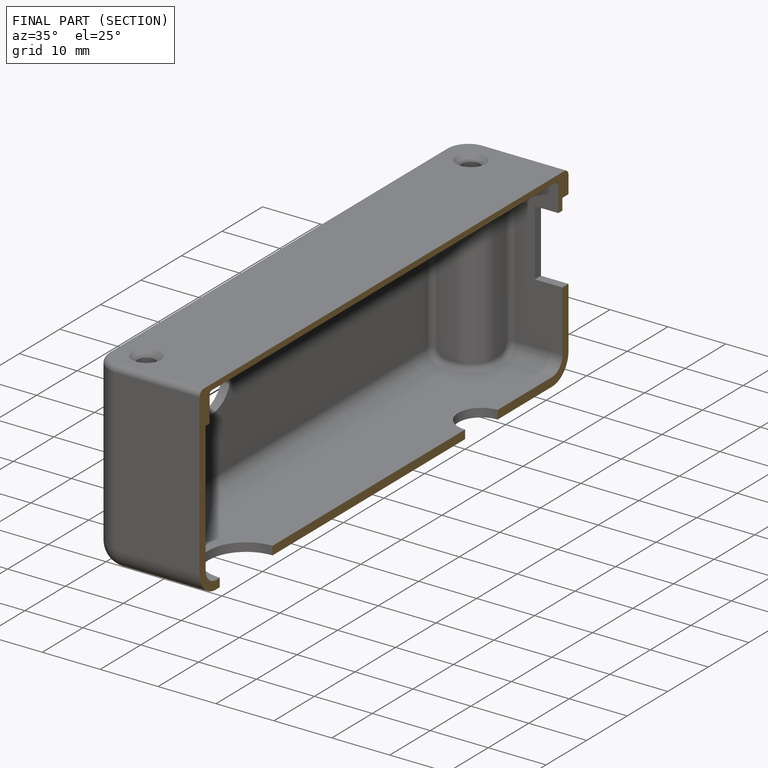
[diagram: finished part — half-section view (interior)]
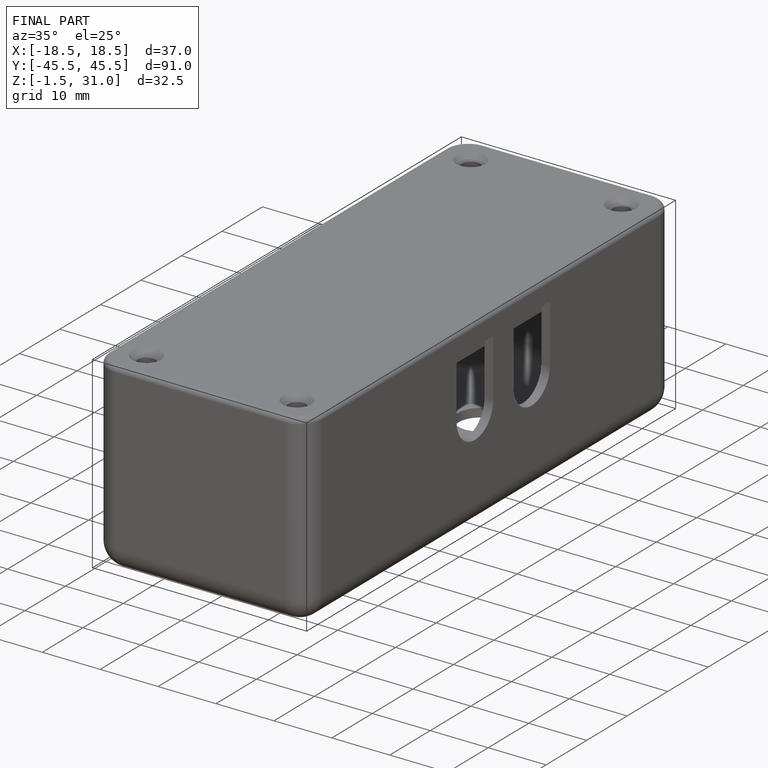
[diagram: finished part — iso view with bounding-box wireframe]
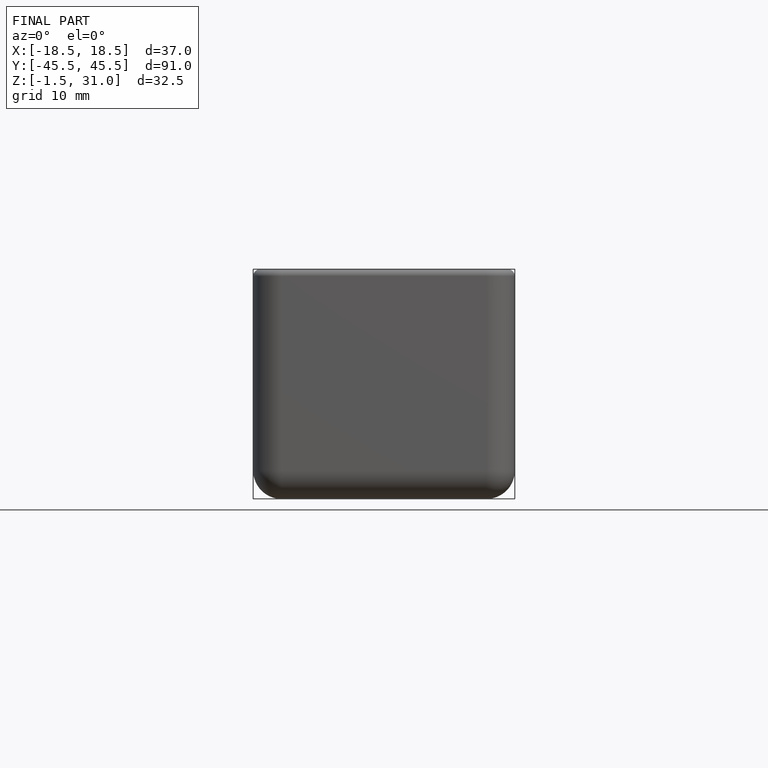
[diagram: finished part — front view with bounding-box wireframe]
